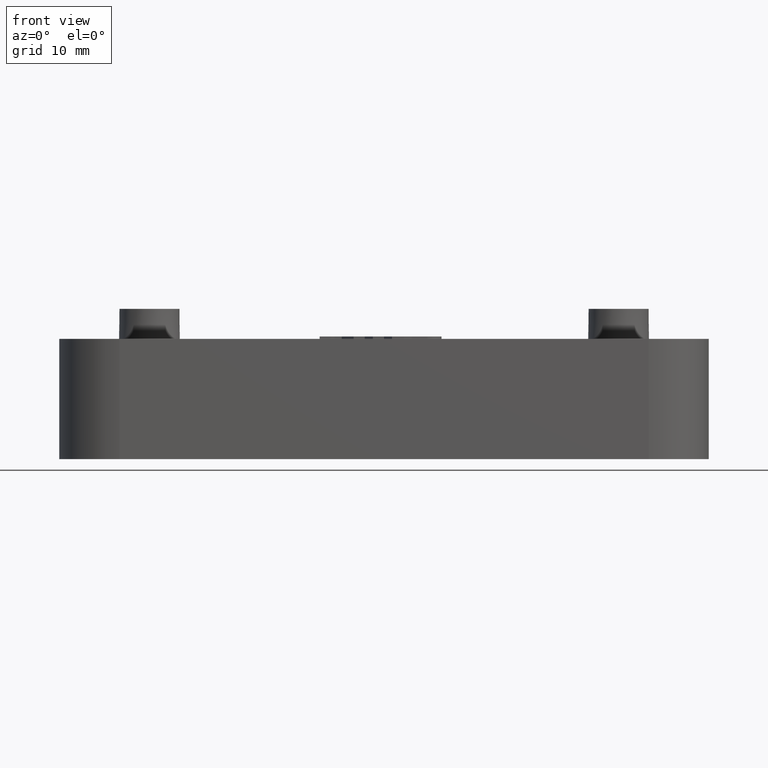
[diagram: clean part render]
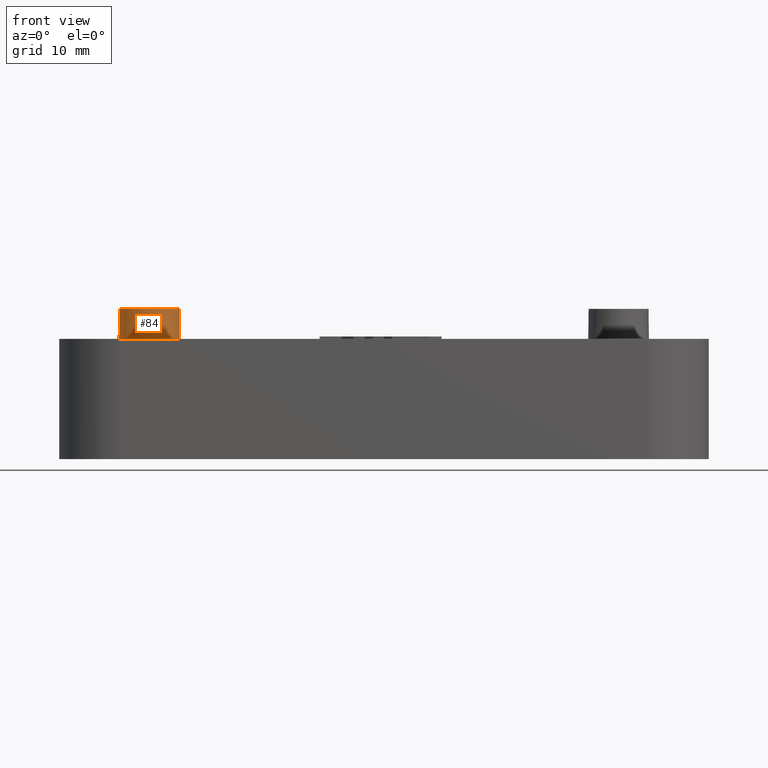
[diagram: same view with one face highlighted and labeled with its STEP entity id]
A machine part, front view. The second image highlights one B-rep face of the part: STEP entity #84.
In plain terms, the highlighted conical surface has half-angle 1 deg.
Its self-contained STEP definition (entity closure, byte-faithful):
#84 = ADVANCED_FACE( '', ( #442, #443 ), #444, .T. );
#442 = FACE_OUTER_BOUND( '', #1094, .T. );
#443 = FACE_BOUND( '', #1095, .T. );
#444 = CONICAL_SURFACE( '', #1096, 2.50000000000000, 0.0174532925199433 );
#1094 = EDGE_LOOP( '', ( #1999 ) );
#1095 = EDGE_LOOP( '', ( #2000 ) );
#1096 = AXIS2_PLACEMENT_3D( '', #2001, #2002, #2003 );
#1999 = ORIENTED_EDGE( '', *, *, #4127, .F. );
#2000 = ORIENTED_EDGE( '', *, *, #4382, .T. );
#2001 = CARTESIAN_POINT( '', ( -19.5000000000000, -8.06714178964996E-016, 12.5000000000000 ) );
#2002 = DIRECTION( '', ( 0.000000000000000, -6.12303176911189E-017, -1.00000000000000 ) );
#2003 = DIRECTION( '', ( 0.000000000000000, 1.00000000000000, -6.12303176911189E-017 ) );
#4127 = EDGE_CURVE( '', #4906, #4906, #4907, .T. );
#4382 = EDGE_CURVE( '', #5407, #5407, #5408, .T. );
#4906 = VERTEX_POINT( '', #6189 );
#4907 = CIRCLE( '', #6190, 2.54363766232054 );
#5407 = VERTEX_POINT( '', #6937 );
#5408 = CIRCLE( '', #6938, 2.50000000000000 );
#6189 = CARTESIAN_POINT( '', ( -19.5000000000000, 2.54363766232054, 10.0000000000000 ) );
#6190 = AXIS2_PLACEMENT_3D( '', #8175, #8176, #8177 );
#6937 = CARTESIAN_POINT( '', ( -17.0000000000000, -6.53638384737199E-016, 12.5000000000000 ) );
#6938 = AXIS2_PLACEMENT_3D( '', #8446, #8447, #8448 );
#8175 = CARTESIAN_POINT( '', ( -19.5000000000000, -9.59789973192793E-016, 10.0000000000000 ) );
#8176 = DIRECTION( '', ( 0.000000000000000, -6.12303176911189E-017, -1.00000000000000 ) );
#8177 = DIRECTION( '', ( 0.000000000000000, 1.00000000000000, -6.12303176911189E-017 ) );
#8446 = CARTESIAN_POINT( '', ( -19.5000000000000, -8.06714178964996E-016, 12.5000000000000 ) );
#8447 = DIRECTION( '', ( 4.37905770101506E-049, -6.12303176911189E-017, -1.00000000000000 ) );
#8448 = DIRECTION( '', ( 1.00000000000000, 6.12303176911189E-017, -3.74915180455535E-033 ) );